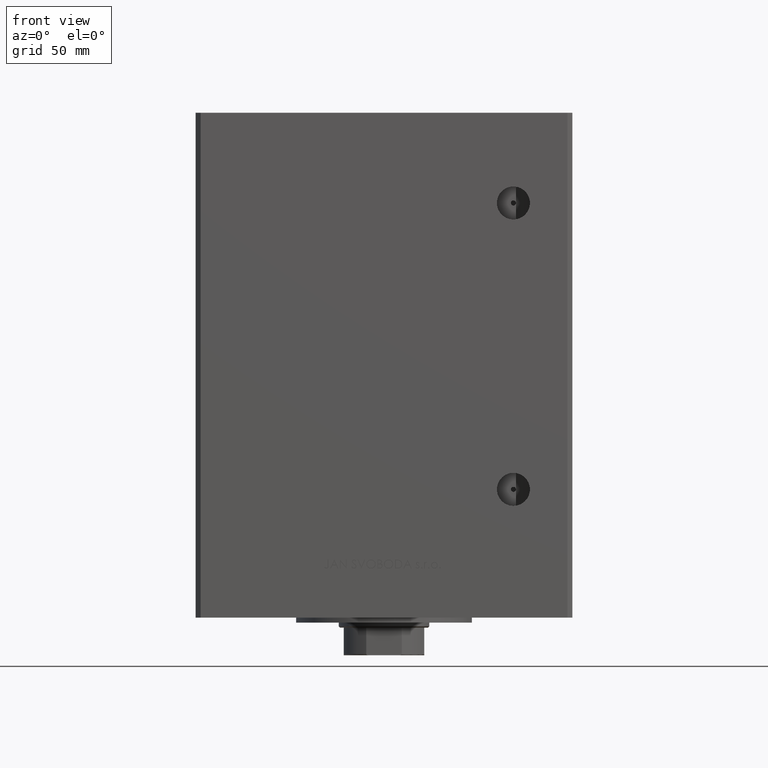
[diagram: clean part render]
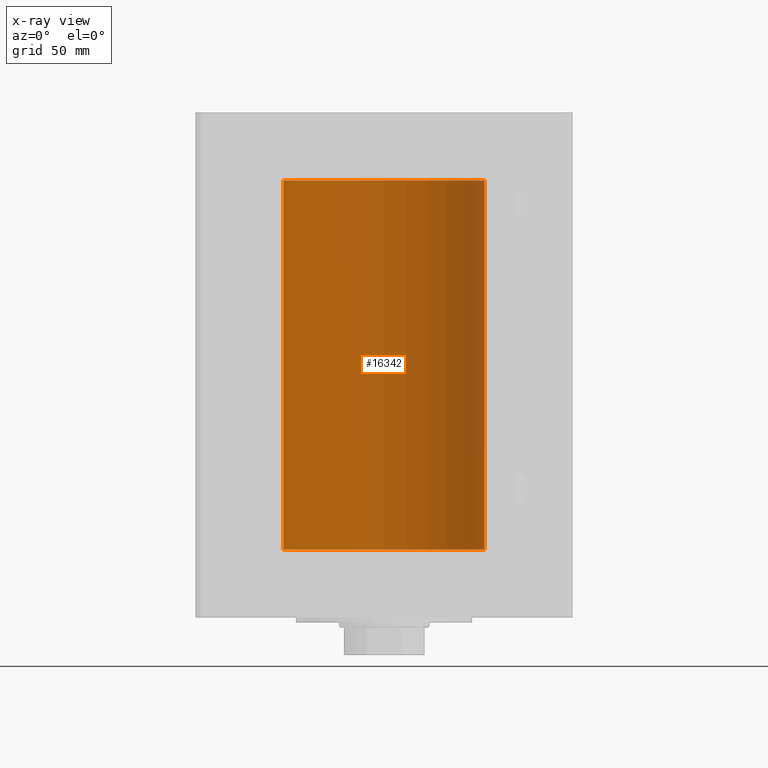
[diagram: x-ray — body ghosted, one internal face saturated and labeled with its STEP entity id]
A machine part, front view, then the same camera in x-ray: the body is ghosted and one INTERNAL B-rep face — a face not visible from any outside direction — is saturated and labeled: STEP entity #16342.
In plain terms, the highlighted cylindrical surface (partial cylindrical patch) has radius 40 mm, axis along (-0, -0, -1).
Its self-contained STEP definition (entity closure, byte-faithful):
#817 = VERTEX_POINT ( 'NONE', #11563 ) ;
#5561 = DIRECTION ( 'NONE',  ( -0.000000000000000000, -0.000000000000000000, -1.000000000000000000 ) ) ;
#5698 = CARTESIAN_POINT ( 'NONE',  ( 40.00000000000000000, 4.898587196589413026E-15, 147.0000000000000000 ) ) ;
#11168 = VECTOR ( 'NONE', #37488, 1000.000000000000000 ) ;
#11370 = VERTEX_POINT ( 'NONE', #38127 ) ;
#11563 = CARTESIAN_POINT ( 'NONE',  ( 40.00000000000000000, 4.898587196589413026E-15, 0.000000000000000000 ) ) ;
#12298 = CIRCLE ( 'NONE', #37466, 40.00000000000000000 ) ;
#13237 = CARTESIAN_POINT ( 'NONE',  ( 0.000000000000000000, 0.000000000000000000, 147.0000000000000000 ) ) ;
#14189 = CARTESIAN_POINT ( 'NONE',  ( 40.00000000000000000, 4.898587196589413026E-15, 147.0000000000000000 ) ) ;
#16249 = ORIENTED_EDGE ( 'NONE', *, *, #48781, .F. ) ;
#16342 = ADVANCED_FACE ( 'NONE', ( #32828 ), #48056, .F. ) ;
#17323 = VECTOR ( 'NONE', #5561, 1000.000000000000000 ) ;
#17869 = EDGE_LOOP ( 'NONE', ( #22730, #29444, #31438, #16249 ) ) ;
#22028 = AXIS2_PLACEMENT_3D ( 'NONE', #13237, #48311, #28753 ) ;
#22730 = ORIENTED_EDGE ( 'NONE', *, *, #35466, .F. ) ;
#23445 = CARTESIAN_POINT ( 'NONE',  ( 0.000000000000000000, 0.000000000000000000, 147.0000000000000000 ) ) ;
#25226 = EDGE_CURVE ( 'NONE', #37053, #11370, #48780, .T. ) ;
#28753 = DIRECTION ( 'NONE',  ( -1.000000000000000000, 0.000000000000000000, 0.000000000000000000 ) ) ;
#29444 = ORIENTED_EDGE ( 'NONE', *, *, #38253, .T. ) ;
#29621 = LINE ( 'NONE', #5698, #11168 ) ;
#31082 = DIRECTION ( 'NONE',  ( -0.000000000000000000, 0.000000000000000000, 1.000000000000000000 ) ) ;
#31438 = ORIENTED_EDGE ( 'NONE', *, *, #25226, .T. ) ;
#31711 = CARTESIAN_POINT ( 'NONE',  ( -40.00000000000000000, 0.000000000000000000, 147.0000000000000000 ) ) ;
#32290 = CIRCLE ( 'NONE', #37935, 40.00000000000000000 ) ;
#32560 = VERTEX_POINT ( 'NONE', #14189 ) ;
#32828 = FACE_OUTER_BOUND ( 'NONE', #17869, .T. ) ;
#35381 = CARTESIAN_POINT ( 'NONE',  ( 0.000000000000000000, 0.000000000000000000, 0.000000000000000000 ) ) ;
#35466 = EDGE_CURVE ( 'NONE', #32560, #817, #29621, .T. ) ;
#37053 = VERTEX_POINT ( 'NONE', #31711 ) ;
#37466 = AXIS2_PLACEMENT_3D ( 'NONE', #35381, #31082, #46063 ) ;
#37488 = DIRECTION ( 'NONE',  ( -0.000000000000000000, -0.000000000000000000, -1.000000000000000000 ) ) ;
#37935 = AXIS2_PLACEMENT_3D ( 'NONE', #23445, #39432, #42512 ) ;
#38127 = CARTESIAN_POINT ( 'NONE',  ( -40.00000000000000000, 0.000000000000000000, 0.000000000000000000 ) ) ;
#38253 = EDGE_CURVE ( 'NONE', #32560, #37053, #32290, .T. ) ;
#39432 = DIRECTION ( 'NONE',  ( -0.000000000000000000, 0.000000000000000000, 1.000000000000000000 ) ) ;
#42512 = DIRECTION ( 'NONE',  ( 1.000000000000000000, 0.000000000000000000, 0.000000000000000000 ) ) ;
#46063 = DIRECTION ( 'NONE',  ( 1.000000000000000000, 0.000000000000000000, 0.000000000000000000 ) ) ;
#47770 = CARTESIAN_POINT ( 'NONE',  ( -40.00000000000000000, 0.000000000000000000, 147.0000000000000000 ) ) ;
#48056 = CYLINDRICAL_SURFACE ( 'NONE', #22028, 40.00000000000000000 ) ;
#48311 = DIRECTION ( 'NONE',  ( -0.000000000000000000, -0.000000000000000000, -1.000000000000000000 ) ) ;
#48780 = LINE ( 'NONE', #47770, #17323 ) ;
#48781 = EDGE_CURVE ( 'NONE', #817, #11370, #12298, .T. ) ;